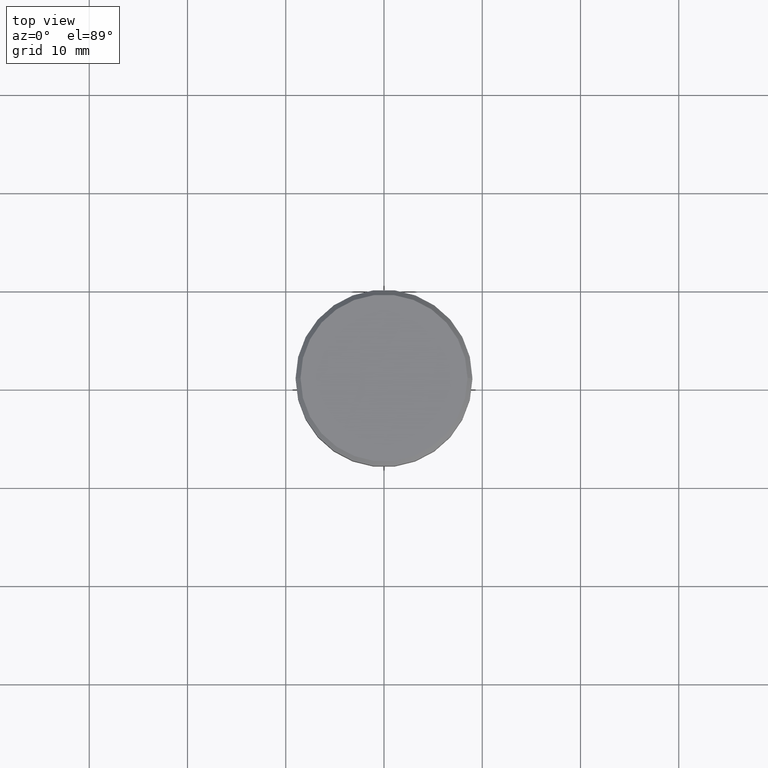
[diagram: clean part render]
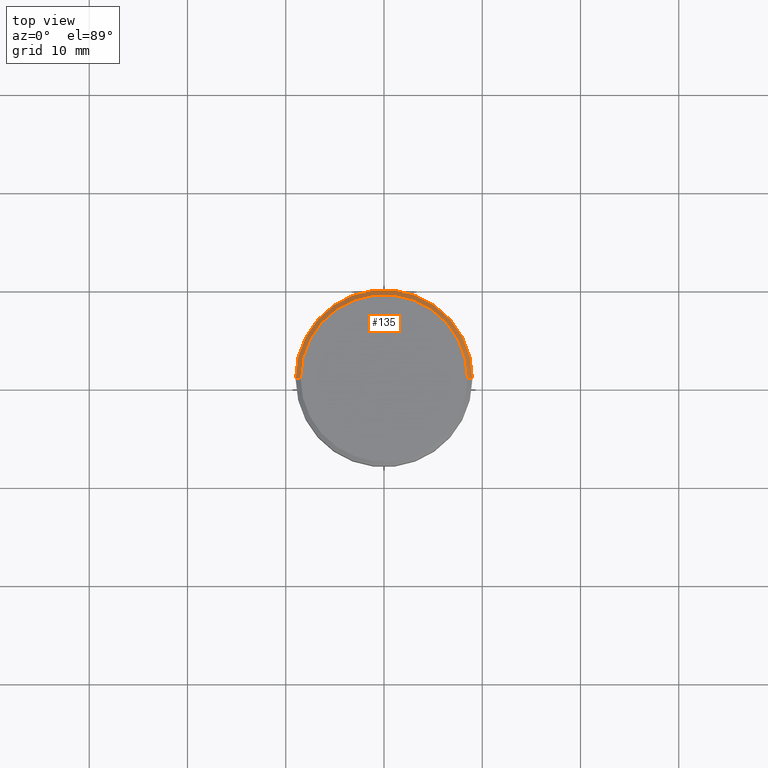
[diagram: same view with one face highlighted and labeled with its STEP entity id]
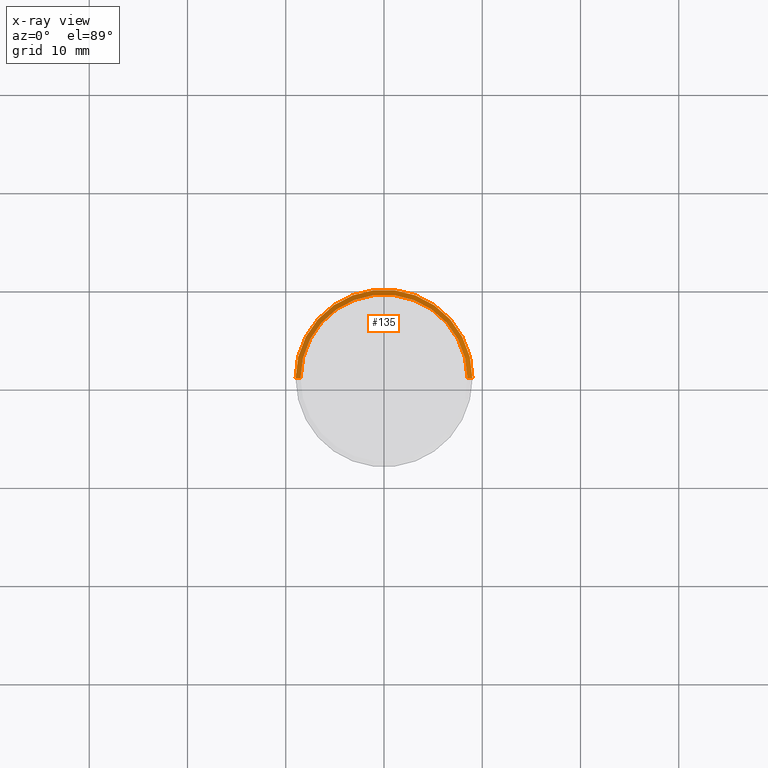
[diagram: x-ray of the same camera — body ghosted, the highlighted face saturated]
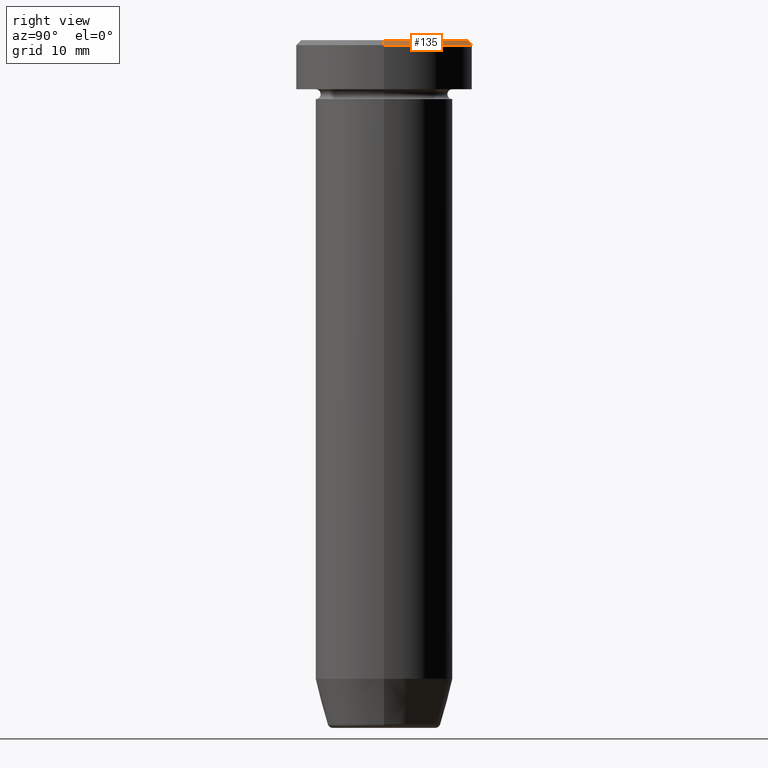
[diagram: same view with one face highlighted and labeled with its STEP entity id]
A machine part, top view. The second image highlights one B-rep face of the part: STEP entity #135.
The next image is the same camera in x-ray: the body ghosted, the highlighted face saturated — about 0% of this face is hidden behind the body in this view.
A second angle (right view) of the same face is appended — the face is thin or edge-on in the first view.
In plain terms, the highlighted conical surface has half-angle 45 deg.
Its self-contained STEP definition (entity closure, byte-faithful):
#30 = CARTESIAN_POINT ( 'NONE',  ( 0.000000000000000000, 0.000000000000000000, 0.000000000000000000 ) ) ;
#51 = CARTESIAN_POINT ( 'NONE',  ( 9.000000000000000000, 0.000000000000000000, -0.4999999999999952260 ) ) ;
#60 = DIRECTION ( 'NONE',  ( 1.000000000000000000, 0.000000000000000000, 0.000000000000000000 ) ) ;
#64 = DIRECTION ( 'NONE',  ( -0.7071067811865474617, 0.000000000000000000, -0.7071067811865474617 ) ) ;
#93 = CARTESIAN_POINT ( 'NONE',  ( 8.500000000000003553, 1.071565949253934321E-15, 0.000000000000000000 ) ) ;
#99 = CARTESIAN_POINT ( 'NONE',  ( 8.500000000000003553, 1.040949779275250731E-15, 0.000000000000000000 ) ) ;
#106 = DIRECTION ( 'NONE',  ( 0.7071067811865474617, 8.659560562354932858E-17, -0.7071067811865474617 ) ) ;
#129 = CARTESIAN_POINT ( 'NONE',  ( 0.000000000000000000, 0.000000000000000000, 0.000000000000000000 ) ) ;
#135 = ADVANCED_FACE ( 'NONE', ( #323 ), #333, .T. ) ;
#160 = AXIS2_PLACEMENT_3D ( 'NONE', #482, #523, #60 ) ;
#179 = DIRECTION ( 'NONE',  ( -0.000000000000000000, -0.000000000000000000, 1.000000000000000000 ) ) ;
#183 = ORIENTED_EDGE ( 'NONE', *, *, #216, .F. ) ;
#193 = CIRCLE ( 'NONE', #393, 8.500000000000003553 ) ;
#216 = EDGE_CURVE ( 'NONE', #399, #301, #193, .T. ) ;
#244 = LINE ( 'NONE', #99, #565 ) ;
#295 = LINE ( 'NONE', #526, #429 ) ;
#301 = VERTEX_POINT ( 'NONE', #400 ) ;
#302 = CARTESIAN_POINT ( 'NONE',  ( -9.000000000000000000, 1.102182119232617714E-15, -0.4999999999999952260 ) ) ;
#314 = EDGE_CURVE ( 'NONE', #377, #487, #336, .T. ) ;
#323 = FACE_OUTER_BOUND ( 'NONE', #541, .T. ) ;
#326 = EDGE_CURVE ( 'NONE', #301, #377, #295, .T. ) ;
#332 = ORIENTED_EDGE ( 'NONE', *, *, #314, .F. ) ;
#333 = CONICAL_SURFACE ( 'NONE', #486, 8.500000000000003553, 0.7853981633974482790 ) ;
#336 = CIRCLE ( 'NONE', #160, 9.000000000000000000 ) ;
#366 = DIRECTION ( 'NONE',  ( -1.000000000000000000, 0.000000000000000000, 0.000000000000000000 ) ) ;
#376 = DIRECTION ( 'NONE',  ( 1.000000000000000000, 0.000000000000000000, 0.000000000000000000 ) ) ;
#377 = VERTEX_POINT ( 'NONE', #302 ) ;
#393 = AXIS2_PLACEMENT_3D ( 'NONE', #129, #179, #376 ) ;
#399 = VERTEX_POINT ( 'NONE', #93 ) ;
#400 = CARTESIAN_POINT ( 'NONE',  ( -8.500000000000003553, 0.000000000000000000, 0.000000000000000000 ) ) ;
#404 = ORIENTED_EDGE ( 'NONE', *, *, #326, .F. ) ;
#429 = VECTOR ( 'NONE', #64, 1000.000000000000114 ) ;
#482 = CARTESIAN_POINT ( 'NONE',  ( 0.000000000000000000, 0.000000000000000000, -0.4999999999999952260 ) ) ;
#486 = AXIS2_PLACEMENT_3D ( 'NONE', #30, #498, #366 ) ;
#487 = VERTEX_POINT ( 'NONE', #51 ) ;
#498 = DIRECTION ( 'NONE',  ( 0.000000000000000000, 0.000000000000000000, -1.000000000000000000 ) ) ;
#523 = DIRECTION ( 'NONE',  ( 0.000000000000000000, 0.000000000000000000, -1.000000000000000000 ) ) ;
#526 = CARTESIAN_POINT ( 'NONE',  ( -8.500000000000003553, 0.000000000000000000, 0.000000000000000000 ) ) ;
#541 = EDGE_LOOP ( 'NONE', ( #183, #578, #332, #404 ) ) ;
#565 = VECTOR ( 'NONE', #106, 1000.000000000000114 ) ;
#572 = EDGE_CURVE ( 'NONE', #399, #487, #244, .T. ) ;
#578 = ORIENTED_EDGE ( 'NONE', *, *, #572, .T. ) ;